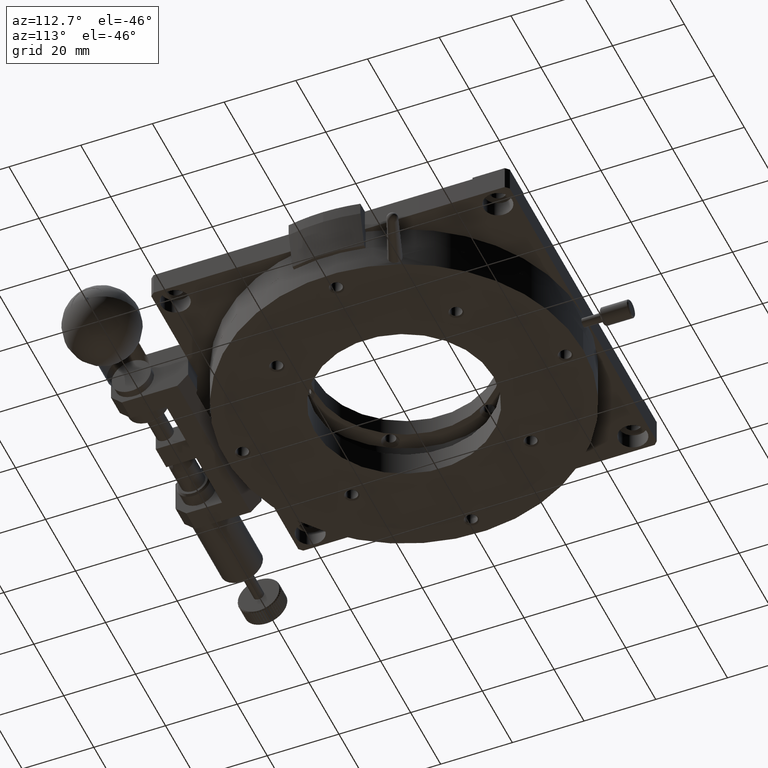
[diagram: clean part render]
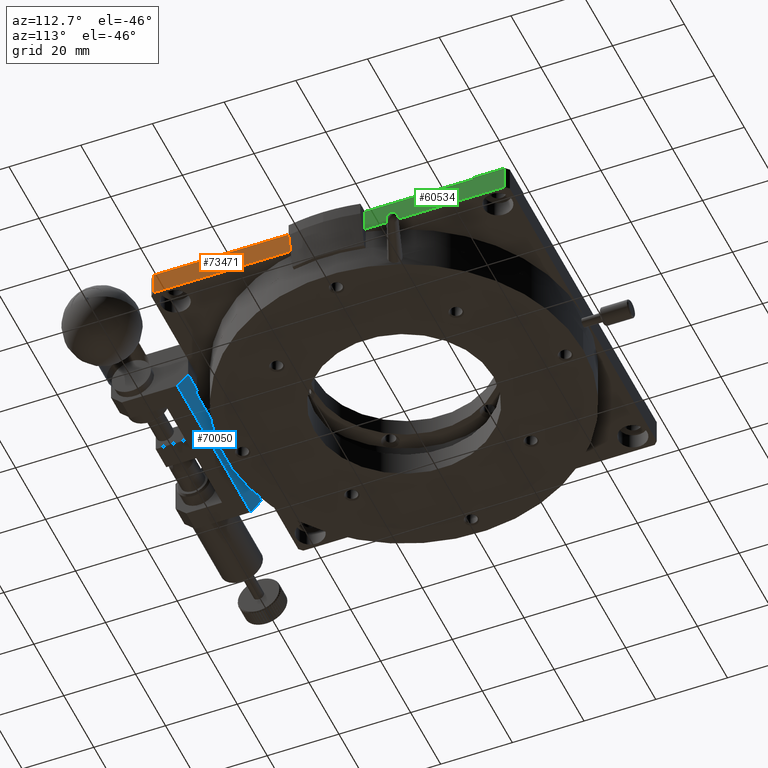
[diagram: same view with three faces highlighted in distinct colors, each labeled with its STEP entity id]
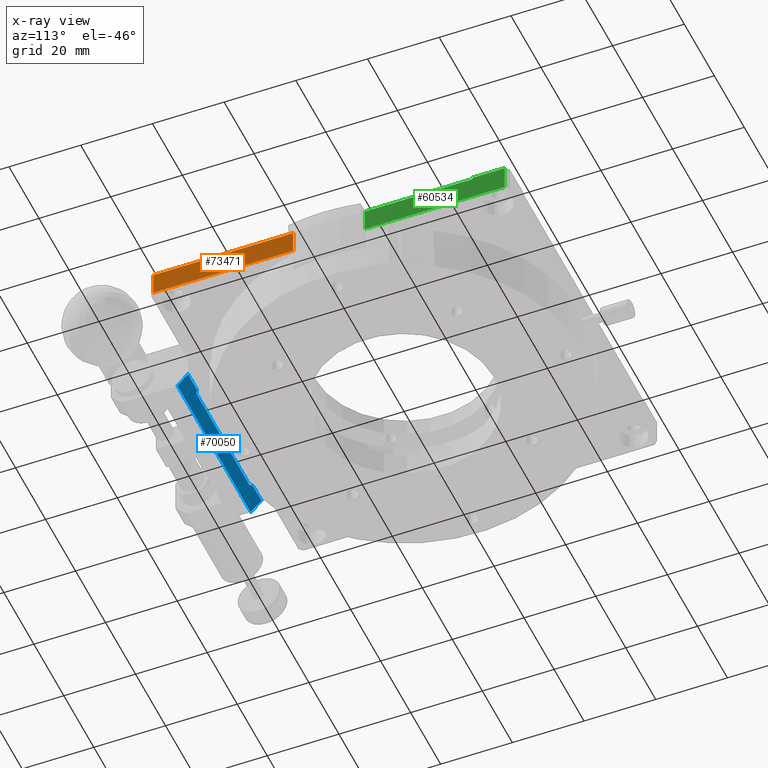
[diagram: x-ray of the same camera — body ghosted, the three highlighted faces saturated]
A machine part, auxiliary view with three faces highlighted in distinct colors.
The next image is the same camera in x-ray (body ghosted, the three faces saturated) — at least one of them is partly hidden behind the body in this view.
Their STEP definitions:

[orange] entity #73471 — the highlighted planar face has unit normal (-1, 0, 0).
#3024 = EDGE_CURVE ( 'NONE', #22913, #30158, #38010, .T. ) ;
#3581 = DIRECTION ( 'NONE',  ( -0.000000000000000000, -0.000000000000000000, 1.000000000000000000 ) ) ;
#5677 = DIRECTION ( 'NONE',  ( -1.000000000000000000, 0.000000000000000000, 0.000000000000000000 ) ) ;
#8335 = DIRECTION ( 'NONE',  ( -0.000000000000000000, -1.000000000000000000, -0.000000000000000000 ) ) ;
#9415 = CARTESIAN_POINT ( 'NONE',  ( 50.00000000000000000, -49.00000000000001421, -6.500000000000000888 ) ) ;
#9832 = CARTESIAN_POINT ( 'NONE',  ( 50.00000000000000711, -10.00200000000000067, 0.000000000000000000 ) ) ;
#13966 = CARTESIAN_POINT ( 'NONE',  ( 50.00000000000000000, -0.001999999999999399827, 0.000000000000000000 ) ) ;
#17367 = LINE ( 'NONE', #61050, #89826 ) ;
#18589 = DIRECTION ( 'NONE',  ( 0.000000000000000000, 1.000000000000000000, 0.000000000000000000 ) ) ;
#22913 = VERTEX_POINT ( 'NONE', #76711 ) ;
#23984 = ORIENTED_EDGE ( 'NONE', *, *, #27403, .T. ) ;
#25936 = FACE_OUTER_BOUND ( 'NONE', #62686, .T. ) ;
#26076 = CARTESIAN_POINT ( 'NONE',  ( 50.00000000000000000, -49.00000000000000711, 1.951563910473907981E-15 ) ) ;
#27403 = EDGE_CURVE ( 'NONE', #52315, #83594, #41527, .T. ) ;
#28169 = DIRECTION ( 'NONE',  ( -0.000000000000000000, -1.000000000000000000, -0.000000000000000000 ) ) ;
#30158 = VERTEX_POINT ( 'NONE', #9415 ) ;
#31073 = AXIS2_PLACEMENT_3D ( 'NONE', #88092, #5677, #18589 ) ;
#37844 = CARTESIAN_POINT ( 'NONE',  ( 50.00000000000000000, -10.00200000000000067, -6.500000000000000888 ) ) ;
#38010 = LINE ( 'NONE', #59672, #47591 ) ;
#41527 = LINE ( 'NONE', #13966, #64750 ) ;
#44466 = ORIENTED_EDGE ( 'NONE', *, *, #72255, .F. ) ;
#47591 = VECTOR ( 'NONE', #8335, 1000.000000000000000 ) ;
#52120 = LINE ( 'NONE', #37844, #88691 ) ;
#52315 = VERTEX_POINT ( 'NONE', #9832 ) ;
#54418 = PLANE ( 'NONE',  #31073 ) ;
#59672 = CARTESIAN_POINT ( 'NONE',  ( 50.00000000000000000, -10.00200000000000067, -6.500000000000000888 ) ) ;
#61050 = CARTESIAN_POINT ( 'NONE',  ( 50.00000000000000000, -49.00000000000000000, -6.500000000000000888 ) ) ;
#62686 = EDGE_LOOP ( 'NONE', ( #44466, #68413, #77417, #23984 ) ) ;
#64750 = VECTOR ( 'NONE', #28169, 1000.000000000000000 ) ;
#68413 = ORIENTED_EDGE ( 'NONE', *, *, #3024, .F. ) ;
#72255 = EDGE_CURVE ( 'NONE', #30158, #83594, #17367, .T. ) ;
#73471 = ADVANCED_FACE ( 'NONE', ( #25936 ), #54418, .F. ) ;
#74268 = DIRECTION ( 'NONE',  ( 0.000000000000000000, 0.000000000000000000, -1.000000000000000000 ) ) ;
#76711 = CARTESIAN_POINT ( 'NONE',  ( 50.00000000000000711, -10.00200000000000067, -6.500000000000001776 ) ) ;
#77417 = ORIENTED_EDGE ( 'NONE', *, *, #80718, .F. ) ;
#80718 = EDGE_CURVE ( 'NONE', #52315, #22913, #52120, .T. ) ;
#83594 = VERTEX_POINT ( 'NONE', #26076 ) ;
#88092 = CARTESIAN_POINT ( 'NONE',  ( 50.00000000000000000, -10.00200000000000067, -6.500000000000000888 ) ) ;
#88691 = VECTOR ( 'NONE', #74268, 1000.000000000000000 ) ;
#89826 = VECTOR ( 'NONE', #3581, 1000.000000000000000 ) ;

[blue] entity #70050 — the highlighted planar face has unit normal (0, -0.7071, 0.7071).
#996 = ORIENTED_EDGE ( 'NONE', *, *, #48125, .F. ) ;
#1267 = ORIENTED_EDGE ( 'NONE', *, *, #65995, .F. ) ;
#2091 = CARTESIAN_POINT ( 'NONE',  ( 17.50000000000000000, -50.49900000000000233, -12.50000000000000000 ) ) ;
#3312 = LINE ( 'NONE', #45174, #65932 ) ;
#3816 = ORIENTED_EDGE ( 'NONE', *, *, #30396, .F. ) ;
#3938 = CARTESIAN_POINT ( 'NONE',  ( 24.50000000000000000, -53.00000000000000000, -15.00100000000000122 ) ) ;
#4932 = CARTESIAN_POINT ( 'NONE',  ( -18.36544728320100361, -50.00000000000000000, -12.00100000000000122 ) ) ;
#6124 = VECTOR ( 'NONE', #79336, 1000.000000000000000 ) ;
#6527 = VERTEX_POINT ( 'NONE', #21459 ) ;
#7413 = CARTESIAN_POINT ( 'NONE',  ( -24.50000000000000000, -53.00000000000000000, -15.00100000000000122 ) ) ;
#7784 = ORIENTED_EDGE ( 'NONE', *, *, #46709, .F. ) ;
#9338 = ORIENTED_EDGE ( 'NONE', *, *, #49439, .T. ) ;
#9870 = CARTESIAN_POINT ( 'NONE',  ( 18.18229072549959824, -50.31639190671283757, -12.31739190671283879 ) ) ;
#10891 = CARTESIAN_POINT ( 'NONE',  ( 18.36544728320100361, -50.00000000000000000, -12.00100000000000122 ) ) ;
#11166 = ORIENTED_EDGE ( 'NONE', *, *, #11667, .F. ) ;
#11667 = EDGE_CURVE ( 'NONE', #51306, #20330, #61541, .T. ) ;
#11720 = CARTESIAN_POINT ( 'NONE',  ( -18.36544728320100361, -50.00000000000000000, -12.00100000000000122 ) ) ;
#13488 = LINE ( 'NONE', #41985, #79967 ) ;
#13580 = CARTESIAN_POINT ( 'NONE',  ( 24.50000000000000000, -50.49900000000000233, -12.50000000000000000 ) ) ;
#13757 = EDGE_LOOP ( 'NONE', ( #1267, #3816, #11166, #7784, #9338, #996, #70713, #70624, #37604, #76051 ) ) ;
#13785 = DIRECTION ( 'NONE',  ( 1.000000000000000000, -0.000000000000000000, 0.000000000000000000 ) ) ;
#14400 = DIRECTION ( 'NONE',  ( 0.000000000000000000, 0.7071067811865469066, 0.7071067811865482389 ) ) ;
#15800 = VERTEX_POINT ( 'NONE', #42937 ) ;
#16788 = CARTESIAN_POINT ( 'NONE',  ( 18.36544728320100361, -50.00000000000000000, -12.00100000000000122 ) ) ;
#19038 = VECTOR ( 'NONE', #86628, 1000.000000000000000 ) ;
#20330 = VERTEX_POINT ( 'NONE', #78280 ) ;
#21459 = CARTESIAN_POINT ( 'NONE',  ( -17.50000000000000000, -50.49900000000000233, -12.50000000000000000 ) ) ;
#24640 = CARTESIAN_POINT ( 'NONE',  ( -18.18229072549959824, -50.31639190671283757, -12.31739190671283879 ) ) ;
#24827 = EDGE_CURVE ( 'NONE', #89190, #71980, #71820, .T. ) ;
#25536 = CARTESIAN_POINT ( 'NONE',  ( -17.50000000000000000, -50.49900000000000233, -12.50000000000000000 ) ) ;
#25990 = CARTESIAN_POINT ( 'NONE',  ( -17.86558195149981998, -50.49900000000000944, -12.50000000000000000 ) ) ;
#26570 = CARTESIAN_POINT ( 'NONE',  ( 24.50000000000000000, -50.49900000000000233, -12.50000000000000000 ) ) ;
#26916 = CARTESIAN_POINT ( 'NONE',  ( 24.50000000000000000, -50.00000000000000000, -12.00099999999999945 ) ) ;
#28845 = VECTOR ( 'NONE', #53711, 1000.000000000000000 ) ;
#29326 =( BOUNDED_CURVE ( )  B_SPLINE_CURVE ( 3, ( #16788, #9870, #79844, #2091 ),
 .UNSPECIFIED., .F., .F. ) 
 B_SPLINE_CURVE_WITH_KNOTS ( ( 4, 4 ),
 ( 5.237142841935349402, 6.283185307179586232 ),
 .UNSPECIFIED. ) 
 CURVE ( )  GEOMETRIC_REPRESENTATION_ITEM ( )  RATIONAL_B_SPLINE_CURVE ( ( 1.000000000000000000, 0.9108760205483614758, 0.9108760205483614758, 1.000000000000000000 ) ) 
 REPRESENTATION_ITEM ( '' )  );
#30396 = EDGE_CURVE ( 'NONE', #20330, #15800, #71914, .T. ) ;
#31339 = DIRECTION ( 'NONE',  ( 1.000000000000000000, 0.000000000000000000, 0.000000000000000000 ) ) ;
#31956 = DIRECTION ( 'NONE',  ( 0.000000000000000000, -0.7071067811865480168, 0.7071067811865470176 ) ) ;
#34065 = EDGE_CURVE ( 'NONE', #6527, #51303, #47281, .T. ) ;
#35172 = VECTOR ( 'NONE', #51049, 999.9999999999998863 ) ;
#37604 = ORIENTED_EDGE ( 'NONE', *, *, #63889, .T. ) ;
#41985 = CARTESIAN_POINT ( 'NONE',  ( 24.50000000000000000, -53.00000000000000000, -15.00100000000000122 ) ) ;
#42937 = CARTESIAN_POINT ( 'NONE',  ( -3.499999999999999556, -50.49900000000000233, -12.50000000000000000 ) ) ;
#45174 = CARTESIAN_POINT ( 'NONE',  ( 24.50000000000000000, -53.00000000000000000, -15.00100000000000122 ) ) ;
#45370 = CARTESIAN_POINT ( 'NONE',  ( -24.50000000000000355, -52.99999999999999289, -15.00099999999999945 ) ) ;
#45427 = CARTESIAN_POINT ( 'NONE',  ( 17.50000000000000000, -50.49900000000000233, -12.50000000000000000 ) ) ;
#45791 = PLANE ( 'NONE',  #54481 ) ;
#46709 = EDGE_CURVE ( 'NONE', #89778, #51306, #29326, .T. ) ;
#47281 =( BOUNDED_CURVE ( )  B_SPLINE_CURVE ( 3, ( #25536, #25990, #24640, #11720 ),
 .UNSPECIFIED., .F., .F. ) 
 B_SPLINE_CURVE_WITH_KNOTS ( ( 4, 4 ),
 ( 0.000000000000000000, 1.046042465244236830 ),
 .UNSPECIFIED. ) 
 CURVE ( )  GEOMETRIC_REPRESENTATION_ITEM ( )  RATIONAL_B_SPLINE_CURVE ( ( 1.000000000000000000, 0.9108760205483614758, 0.9108760205483614758, 1.000000000000000000 ) ) 
 REPRESENTATION_ITEM ( '' )  );
#48125 = EDGE_CURVE ( 'NONE', #85204, #50085, #13488, .T. ) ;
#48724 = LINE ( 'NONE', #76837, #50636 ) ;
#48784 = CARTESIAN_POINT ( 'NONE',  ( 24.50000000000000355, -50.00000000000000711, -12.00100000000000300 ) ) ;
#49439 = EDGE_CURVE ( 'NONE', #89778, #50085, #48724, .T. ) ;
#50085 = VERTEX_POINT ( 'NONE', #48784 ) ;
#50636 = VECTOR ( 'NONE', #13785, 1000.000000000000000 ) ;
#51049 = DIRECTION ( 'NONE',  ( 0.000000000000000000, 0.7071067811865469066, 0.7071067811865482389 ) ) ;
#51303 = VERTEX_POINT ( 'NONE', #4932 ) ;
#51306 = VERTEX_POINT ( 'NONE', #45427 ) ;
#53571 = DIRECTION ( 'NONE',  ( 0.000000000000000000, -0.7071067811865470176, -0.7071067811865480168 ) ) ;
#53711 = DIRECTION ( 'NONE',  ( -1.000000000000000000, -0.000000000000000000, -0.000000000000000000 ) ) ;
#53783 = CARTESIAN_POINT ( 'NONE',  ( -24.50000000000000355, -50.00000000000000711, -12.00100000000000300 ) ) ;
#54481 = AXIS2_PLACEMENT_3D ( 'NONE', #3938, #31956, #53571 ) ;
#57671 = LINE ( 'NONE', #13580, #6124 ) ;
#60636 = EDGE_CURVE ( 'NONE', #89190, #85204, #3312, .T. ) ;
#61430 = DIRECTION ( 'NONE',  ( 1.000000000000000000, -0.000000000000000000, 0.000000000000000000 ) ) ;
#61541 = LINE ( 'NONE', #26570, #28845 ) ;
#63889 = EDGE_CURVE ( 'NONE', #71980, #51303, #82636, .T. ) ;
#65932 = VECTOR ( 'NONE', #31339, 1000.000000000000000 ) ;
#65995 = EDGE_CURVE ( 'NONE', #15800, #6527, #57671, .T. ) ;
#66937 = CARTESIAN_POINT ( 'NONE',  ( 24.50000000000000000, -53.00000000000000000, -15.00100000000000122 ) ) ;
#70050 = ADVANCED_FACE ( 'NONE', ( #80782 ), #45791, .F. ) ;
#70624 = ORIENTED_EDGE ( 'NONE', *, *, #24827, .T. ) ;
#70713 = ORIENTED_EDGE ( 'NONE', *, *, #60636, .F. ) ;
#71820 = LINE ( 'NONE', #7413, #35172 ) ;
#71914 = LINE ( 'NONE', #85275, #19038 ) ;
#71980 = VERTEX_POINT ( 'NONE', #53783 ) ;
#76051 = ORIENTED_EDGE ( 'NONE', *, *, #34065, .F. ) ;
#76837 = CARTESIAN_POINT ( 'NONE',  ( 24.50000000000000000, -50.00000000000000000, -12.00099999999999945 ) ) ;
#78280 = CARTESIAN_POINT ( 'NONE',  ( 3.499999999999999556, -50.49900000000000233, -12.50000000000000000 ) ) ;
#79336 = DIRECTION ( 'NONE',  ( -1.000000000000000000, -0.000000000000000000, -0.000000000000000000 ) ) ;
#79844 = CARTESIAN_POINT ( 'NONE',  ( 17.86558195149981998, -50.49900000000000944, -12.50000000000000000 ) ) ;
#79967 = VECTOR ( 'NONE', #14400, 999.9999999999998863 ) ;
#80782 = FACE_OUTER_BOUND ( 'NONE', #13757, .T. ) ;
#82636 = LINE ( 'NONE', #26916, #83847 ) ;
#83847 = VECTOR ( 'NONE', #61430, 1000.000000000000000 ) ;
#85204 = VERTEX_POINT ( 'NONE', #66937 ) ;
#85275 = CARTESIAN_POINT ( 'NONE',  ( 24.50000000000000000, -50.49900000000000233, -12.50000000000000000 ) ) ;
#86628 = DIRECTION ( 'NONE',  ( -1.000000000000000000, -0.000000000000000000, -0.000000000000000000 ) ) ;
#89190 = VERTEX_POINT ( 'NONE', #45370 ) ;
#89778 = VERTEX_POINT ( 'NONE', #10891 ) ;

[green] entity #60534 — the highlighted planar face has unit normal (-1, 0, 0).
#2290 = VECTOR ( 'NONE', #71146, 1000.000000000000000 ) ;
#8429 = EDGE_CURVE ( 'NONE', #50509, #42692, #63777, .T. ) ;
#11123 = LINE ( 'NONE', #60794, #43776 ) ;
#13974 = DIRECTION ( 'NONE',  ( -1.000000000000000000, 0.000000000000000000, 0.000000000000000000 ) ) ;
#14522 = AXIS2_PLACEMENT_3D ( 'NONE', #68406, #13974, #35531 ) ;
#18603 = LINE ( 'NONE', #86740, #54846 ) ;
#19074 = CARTESIAN_POINT ( 'NONE',  ( 50.00000000000000711, 40.00000000000000000, 0.000000000000000000 ) ) ;
#19229 = VERTEX_POINT ( 'NONE', #36140 ) ;
#23298 = ORIENTED_EDGE ( 'NONE', *, *, #38268, .T. ) ;
#26958 = VECTOR ( 'NONE', #69514, 1000.000000000000000 ) ;
#30338 = CARTESIAN_POINT ( 'NONE',  ( 50.00000000000000711, 49.00000000000000711, -6.500000000000001776 ) ) ;
#31108 = VECTOR ( 'NONE', #64328, 1000.000000000000000 ) ;
#31457 = DIRECTION ( 'NONE',  ( -0.000000000000000000, -1.000000000000000000, -0.000000000000000000 ) ) ;
#32990 = EDGE_CURVE ( 'NONE', #19229, #82032, #44044, .T. ) ;
#35531 = DIRECTION ( 'NONE',  ( 0.000000000000000000, 1.000000000000000000, 0.000000000000000000 ) ) ;
#36140 = CARTESIAN_POINT ( 'NONE',  ( 50.00000000000000711, 9.997999999999999332, 0.000000000000000000 ) ) ;
#38268 = EDGE_CURVE ( 'NONE', #50509, #19229, #18603, .T. ) ;
#42692 = VERTEX_POINT ( 'NONE', #72935 ) ;
#43039 = CARTESIAN_POINT ( 'NONE',  ( 50.00000000000000000, 40.00000000000000000, 0.5000000000000000000 ) ) ;
#43776 = VECTOR ( 'NONE', #91068, 1000.000000000000000 ) ;
#44044 = LINE ( 'NONE', #81207, #31108 ) ;
#44308 = DIRECTION ( 'NONE',  ( 0.000000000000000000, 0.000000000000000000, -1.000000000000000000 ) ) ;
#49348 = FACE_OUTER_BOUND ( 'NONE', #60494, .T. ) ;
#50509 = VERTEX_POINT ( 'NONE', #19074 ) ;
#50745 = LINE ( 'NONE', #78859, #83908 ) ;
#53108 = ORIENTED_EDGE ( 'NONE', *, *, #69181, .F. ) ;
#54846 = VECTOR ( 'NONE', #31457, 1000.000000000000000 ) ;
#55175 = VERTEX_POINT ( 'NONE', #81853 ) ;
#57899 = EDGE_CURVE ( 'NONE', #42692, #55175, #11123, .T. ) ;
#60494 = EDGE_LOOP ( 'NONE', ( #76737, #81379, #23298, #84312, #70079, #53108 ) ) ;
#60534 = ADVANCED_FACE ( 'NONE', ( #49348 ), #77017, .F. ) ;
#60794 = CARTESIAN_POINT ( 'NONE',  ( 50.00000000000000000, 49.00000000000000000, 0.5000000000000004441 ) ) ;
#63777 = LINE ( 'NONE', #43039, #2290 ) ;
#64328 = DIRECTION ( 'NONE',  ( 0.000000000000000000, 0.000000000000000000, -1.000000000000000000 ) ) ;
#68406 = CARTESIAN_POINT ( 'NONE',  ( 50.00000000000000000, 49.00000000000000000, -6.500000000000000888 ) ) ;
#69181 = EDGE_CURVE ( 'NONE', #55175, #71197, #50745, .T. ) ;
#69514 = DIRECTION ( 'NONE',  ( -0.000000000000000000, -1.000000000000000000, -0.000000000000000000 ) ) ;
#70079 = ORIENTED_EDGE ( 'NONE', *, *, #81167, .F. ) ;
#71146 = DIRECTION ( 'NONE',  ( -0.000000000000000000, -0.000000000000000000, 1.000000000000000000 ) ) ;
#71197 = VERTEX_POINT ( 'NONE', #30338 ) ;
#72935 = CARTESIAN_POINT ( 'NONE',  ( 50.00000000000000711, 40.00000000000000000, 0.5000000000000001110 ) ) ;
#75057 = CARTESIAN_POINT ( 'NONE',  ( 50.00000000000000000, 49.00000000000000000, -6.500000000000000888 ) ) ;
#76737 = ORIENTED_EDGE ( 'NONE', *, *, #57899, .F. ) ;
#77017 = PLANE ( 'NONE',  #14522 ) ;
#78859 = CARTESIAN_POINT ( 'NONE',  ( 50.00000000000000000, 49.00000000000000000, -6.500000000000000888 ) ) ;
#81167 = EDGE_CURVE ( 'NONE', #71197, #82032, #81966, .T. ) ;
#81207 = CARTESIAN_POINT ( 'NONE',  ( 50.00000000000000000, 9.997999999999999332, -13.00000000000000178 ) ) ;
#81379 = ORIENTED_EDGE ( 'NONE', *, *, #8429, .F. ) ;
#81853 = CARTESIAN_POINT ( 'NONE',  ( 50.00000000000000711, 49.00000000000000711, 0.5000000000000003331 ) ) ;
#81966 = LINE ( 'NONE', #75057, #26958 ) ;
#82032 = VERTEX_POINT ( 'NONE', #83018 ) ;
#83018 = CARTESIAN_POINT ( 'NONE',  ( 50.00000000000000711, 9.997999999999999332, -6.500000000000001776 ) ) ;
#83908 = VECTOR ( 'NONE', #44308, 1000.000000000000000 ) ;
#84312 = ORIENTED_EDGE ( 'NONE', *, *, #32990, .T. ) ;
#86740 = CARTESIAN_POINT ( 'NONE',  ( 50.00000000000000000, -0.001999999999999399827, 0.000000000000000000 ) ) ;
#91068 = DIRECTION ( 'NONE',  ( 0.000000000000000000, 1.000000000000000000, 0.000000000000000000 ) ) ;